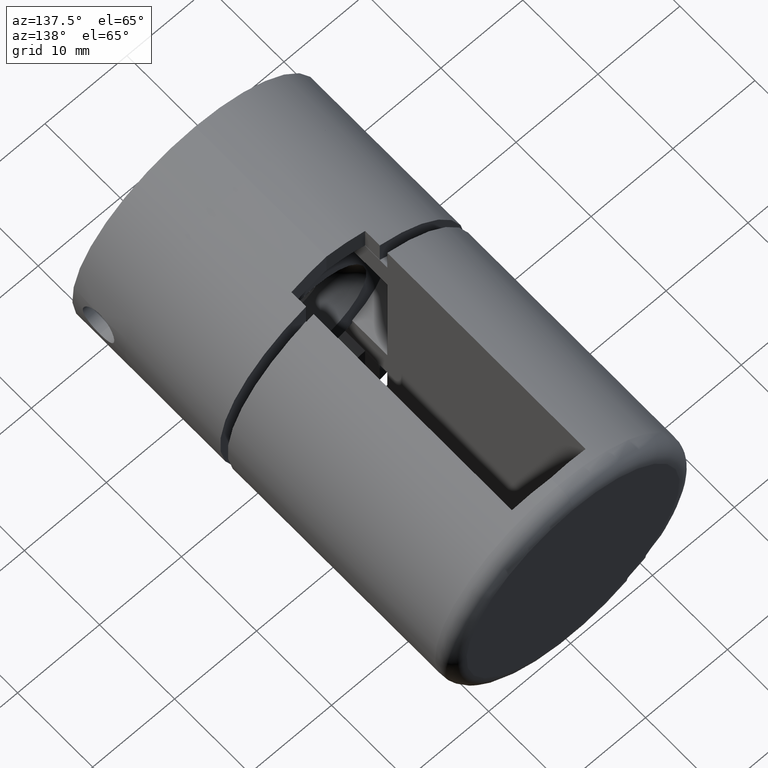
[diagram: clean part render]
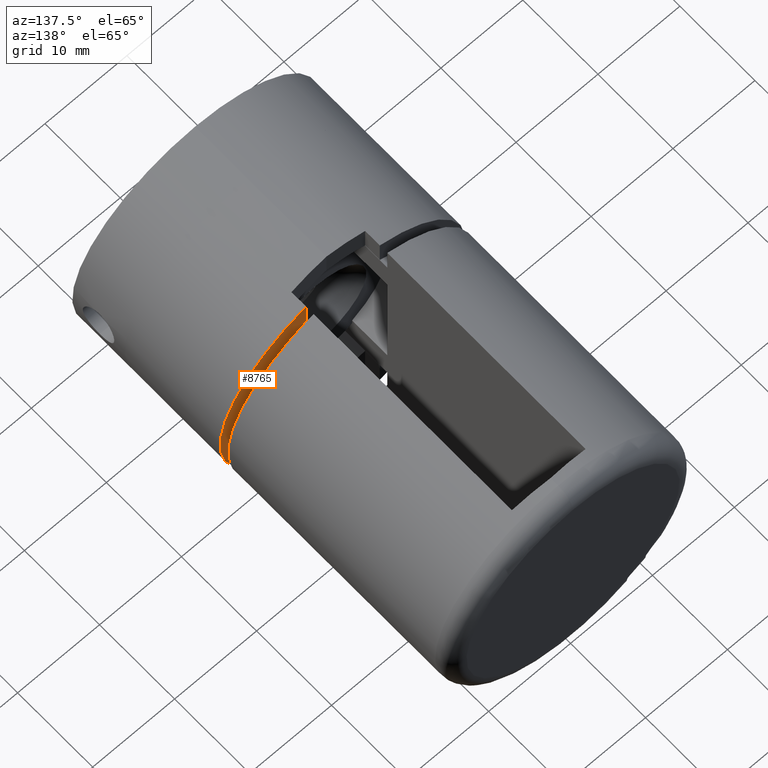
[diagram: same view with one face highlighted and labeled with its STEP entity id]
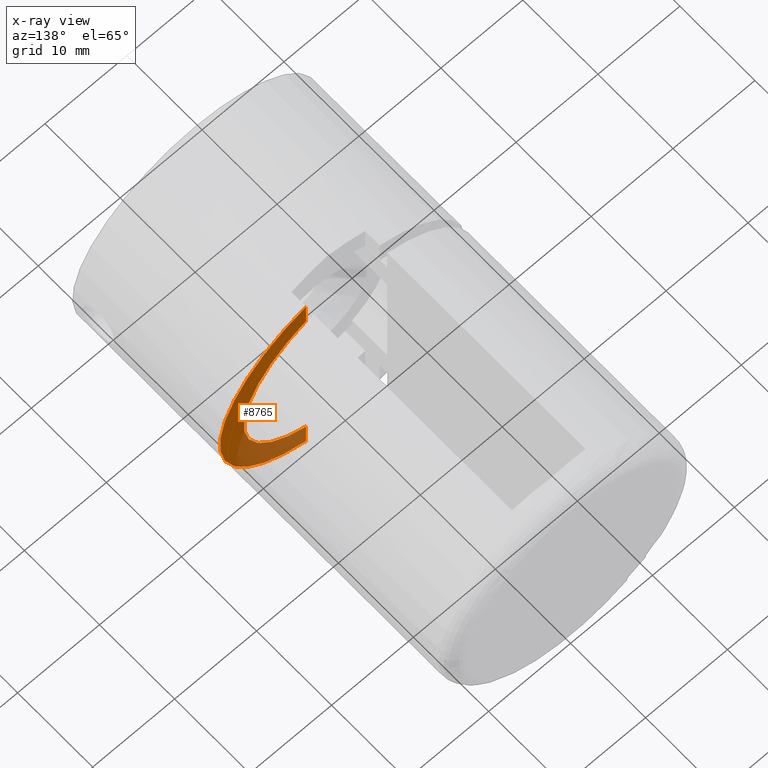
[diagram: x-ray of the same camera — body ghosted, the highlighted face saturated]
A machine part, auxiliary view. The second image highlights one B-rep face of the part: STEP entity #8765.
The next image is the same camera in x-ray: the body ghosted, the highlighted face saturated — about 37% of this face is hidden behind the body in this view.
In plain terms, the highlighted planar face has unit normal (0, -1, 0).
Its self-contained STEP definition (entity closure, byte-faithful):
#276 = CARTESIAN_POINT ( 'NONE',  ( 0.0000000000000000000, 0.0000000000000000000, 0.0000000000000000000 ) ) ;
#284 = ORIENTED_EDGE ( 'NONE', *, *, #8308, .T. ) ;
#353 = EDGE_CURVE ( 'NONE', #13165, #14395, #16243, .T. ) ;
#1461 = FACE_OUTER_BOUND ( 'NONE', #8457, .T. ) ;
#2033 = CIRCLE ( 'NONE', #12393, 15.00000000000000000 ) ;
#2349 = AXIS2_PLACEMENT_3D ( 'NONE', #276, #7148, #4302 ) ;
#2536 = CARTESIAN_POINT ( 'NONE',  ( 0.0000000000000000000, 0.0000000000000000000, 0.0000000000000000000 ) ) ;
#2586 = ORIENTED_EDGE ( 'NONE', *, *, #10440, .T. ) ;
#2723 = LINE ( 'NONE', #12206, #15294 ) ;
#2735 = DIRECTION ( 'NONE',  ( 0.0000000000000000000, 0.0000000000000000000, 1.000000000000000000 ) ) ;
#3715 = AXIS2_PLACEMENT_3D ( 'NONE', #4199, #12024, #2735 ) ;
#3987 = CARTESIAN_POINT ( 'NONE',  ( -4.500000000000000000, 0.0000000000000000000, -11.23209686567917800 ) ) ;
#4144 = DIRECTION ( 'NONE',  ( -0.0000000000000000000, -0.0000000000000000000, 1.000000000000000000 ) ) ;
#4199 = CARTESIAN_POINT ( 'NONE',  ( 0.0000000000000000000, 0.0000000000000000000, 0.0000000000000000000 ) ) ;
#4268 = CARTESIAN_POINT ( 'NONE',  ( -4.500000000000000000, 0.0000000000000000000, 11.23209686567917800 ) ) ;
#4302 = DIRECTION ( 'NONE',  ( 0.0000000000000000000, -0.0000000000000000000, 1.000000000000000000 ) ) ;
#4590 = ORIENTED_EDGE ( 'NONE', *, *, #353, .T. ) ;
#4958 = EDGE_CURVE ( 'NONE', #16178, #14395, #2033, .T. ) ;
#5849 = PLANE ( 'NONE',  #2349 ) ;
#6470 = DIRECTION ( 'NONE',  ( -0.0000000000000000000, -0.0000000000000000000, 1.000000000000000000 ) ) ;
#7148 = DIRECTION ( 'NONE',  ( 0.0000000000000000000, 1.000000000000000000, 0.0000000000000000000 ) ) ;
#8300 = CARTESIAN_POINT ( 'NONE',  ( -4.500000000000000000, 0.0000000000000000000, 14.30908802125418300 ) ) ;
#8308 = EDGE_CURVE ( 'NONE', #16178, #11110, #2723, .T. ) ;
#8457 = EDGE_LOOP ( 'NONE', ( #9593, #284, #2586, #4590 ) ) ;
#8765 = ADVANCED_FACE ( 'NONE', ( #1461 ), #5849, .F. ) ;
#9164 = VECTOR ( 'NONE', #6470, 1000.000000000000000 ) ;
#9171 = DIRECTION ( 'NONE',  ( 0.0000000000000000000, 0.0000000000000000000, 1.000000000000000000 ) ) ;
#9593 = ORIENTED_EDGE ( 'NONE', *, *, #4958, .F. ) ;
#10440 = EDGE_CURVE ( 'NONE', #11110, #13165, #16367, .T. ) ;
#11110 = VERTEX_POINT ( 'NONE', #3987 ) ;
#11173 = CARTESIAN_POINT ( 'NONE',  ( -4.500000000000000000, 0.0000000000000000000, -14.30908802125418500 ) ) ;
#12024 = DIRECTION ( 'NONE',  ( 0.0000000000000000000, 1.000000000000000000, 0.0000000000000000000 ) ) ;
#12206 = CARTESIAN_POINT ( 'NONE',  ( -4.500000000000000000, 0.0000000000000000000, -15.00000000000000000 ) ) ;
#12393 = AXIS2_PLACEMENT_3D ( 'NONE', #2536, #13233, #9171 ) ;
#13165 = VERTEX_POINT ( 'NONE', #4268 ) ;
#13233 = DIRECTION ( 'NONE',  ( 0.0000000000000000000, 1.000000000000000000, 0.0000000000000000000 ) ) ;
#14395 = VERTEX_POINT ( 'NONE', #8300 ) ;
#14408 = CARTESIAN_POINT ( 'NONE',  ( -4.500000000000000000, 0.0000000000000000000, -15.00000000000000000 ) ) ;
#15294 = VECTOR ( 'NONE', #4144, 1000.000000000000000 ) ;
#16178 = VERTEX_POINT ( 'NONE', #11173 ) ;
#16243 = LINE ( 'NONE', #14408, #9164 ) ;
#16367 = CIRCLE ( 'NONE', #3715, 12.10000000000000000 ) ;